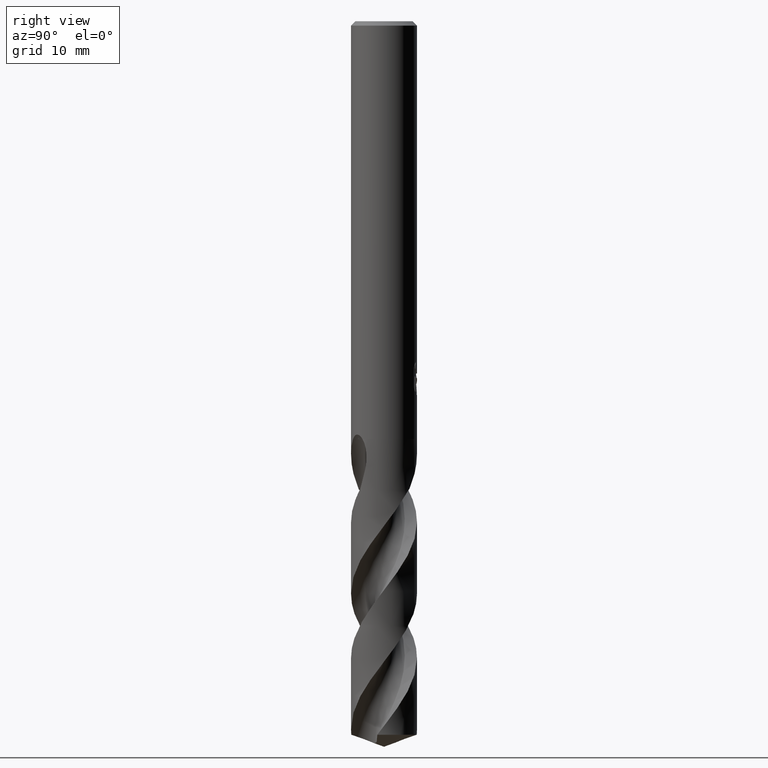
[diagram: clean part render]
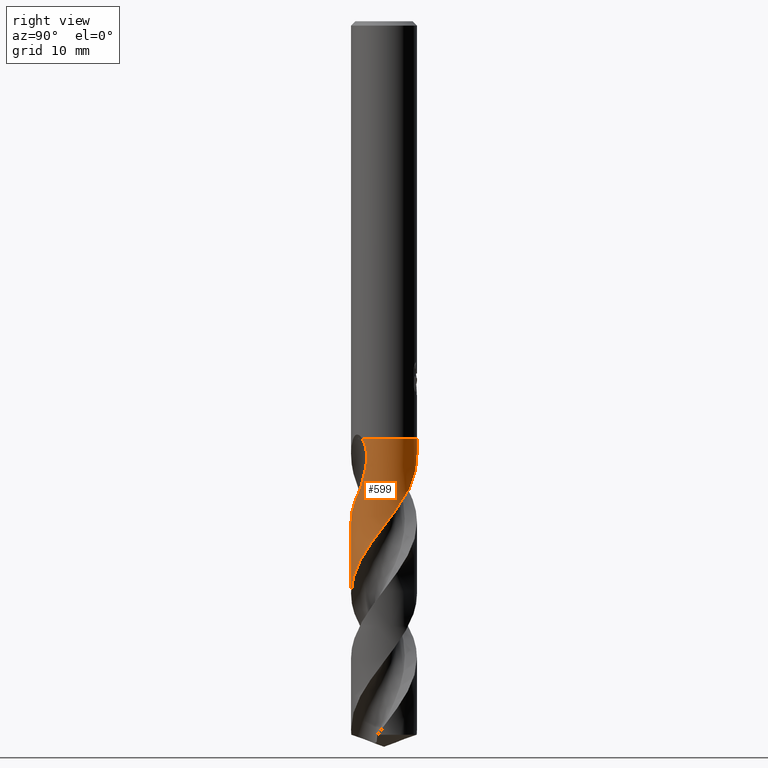
[diagram: same view with one face highlighted and labeled with its STEP entity id]
A machine part, right view. The second image highlights one B-rep face of the part: STEP entity #599.
In plain terms, the highlighted conical surface has half-angle 0 deg.
Its self-contained STEP definition (entity closure, byte-faithful):
#259=VERTEX_POINT('',#718);
#297=EDGE_CURVE('',#539,#515,#759,.T.);
#317=VERTEX_POINT('',#781);
#353=EDGE_CURVE('',#665,#539,#821,.T.);
#367=EDGE_CURVE('',#259,#481,#835,.T.);
#413=EDGE_CURVE('',#529,#515,#886,.T.);
#423=EDGE_CURVE('',#317,#665,#897,.T.);
#447=VERTEX_POINT('',#922);
#481=VERTEX_POINT('',#961);
#515=VERTEX_POINT('',#997);
#525=EDGE_CURVE('',#259,#317,#1008,.T.);
#529=VERTEX_POINT('',#1013);
#539=VERTEX_POINT('',#1023);
#585=EDGE_CURVE('',#447,#481,#1073,.T.);
#599=ADVANCED_FACE('',(#1087),#1088,.T.);
#665=VERTEX_POINT('',#1162);
#681=EDGE_CURVE('',#529,#447,#1179,.T.);
#718=CARTESIAN_POINT('',(-3.66824618936939E-016,2.9999,-38.0));
#759=B_SPLINE_CURVE_WITH_KNOTS('',3,(#1363,#1364,#1365,#1366,#1367,#1368,#1369,#1370,#1371,#1372,#1373,#1374,#1375,#1376,#1377,#1378,#1379,#1380,#1381,#1382,#1383,#1384,#1385,#1386,#1387,#1388,#1389,#1390,#1391,#1392,#1393,#1394,#1395,#1396,#1397,#1398,#1399,#1400,#1401,#1402,#1403,#1404,#1405,#1406,#1407,#1408,#1409,#1410,#1411,#1412,#1413,#1414,#1415,#1416,#1417,#1418,#1419,#1420,#1421,#1422,#1423,#1424,#1425,#1426,#1427,#1428,#1429,#1430,#1431,#1432,#1433,#1434,#1435,#1436,#1437,#1438,#1439,#1440,#1441,#1442,#1443,#1444,#1445,#1446,#1447,#1448),.UNSPECIFIED.,.F.,.F.,(4,2,2,2,2,2,2,2,2,2,2,2,2,2,2,2,2,2,2,2,2,2,2,2,2,2,2,2,2,2,2,2,2,2,2,2,2,2,2,2,2,2,4),(0.0,0.0993043886910324,0.133810008353453,0.198759733156369,0.51618650020772,0.627581816484018,0.698954258966255,0.766036611279358,0.856023579051509,0.957565005734158,1.34121247506467,1.63577952648651,1.92231758631105,3.79579283339037,5.15351212799853,5.91578553599356,6.68924621351449,7.07780265431932,7.44370029096749,8.79859775236509,9.56043310014897,10.334303063432,10.722547094251,11.0750210956175,12.4456948866715,13.2055523892608,13.9797062395637,14.7546070655554,16.2481405469769,16.4087688709198,17.6175894923522,18.3915079182685,19.9131645175091,19.9630808402596,21.5787151557321,21.9328013399243,23.2883165362066,23.8248217374293,24.7699014758561,25.1262025587651,25.7472539043362,26.6829038929545,27.6207703508134),.UNSPECIFIED.);
#781=CARTESIAN_POINT('',(2.27206572632338,-1.95885613184496,-38.0));
#821=B_SPLINE_CURVE_WITH_KNOTS('',3,(#2150,#2151,#2152,#2153),.UNSPECIFIED.,.F.,.F.,(4,4),(0.0,1.72401971933018),.UNSPECIFIED.);
#835=LINE('',#2196,#2197);
#886=LINE('',#2496,#2497);
#897=B_SPLINE_CURVE_WITH_KNOTS('',3,(#2510,#2511,#2512,#2513,#2514,#2515,#2516,#2517),.UNSPECIFIED.,.F.,.F.,(4,2,2,4),(0.0,0.560998860743628,1.34596583268392,2.09615648026801),.UNSPECIFIED.);
#922=CARTESIAN_POINT('',(1.911620345301,2.31197078660974,-42.541));
#961=CARTESIAN_POINT('',(-8.89250010736963E-013,2.99990502479152,-39.3520753885589));
#997=CARTESIAN_POINT('',(-1.00300927533167E-014,-2.99992813344869,-45.5701734954129));
#1008=CIRCLE('',#3261,2.9999);
#1013=CARTESIAN_POINT('',(1.29858009831303E-013,-2.9999523347009,-52.0822680513244));
#1023=CARTESIAN_POINT('',(2.08517324191318,-2.15674611716699,-42.541));
#1073=B_SPLINE_CURVE_WITH_KNOTS('',3,(#3872,#3873,#3874,#3875,#3876,#3877,#3878,#3879,#3880,#3881,#3882,#3883,#3884,#3885),.UNSPECIFIED.,.F.,.F.,(4,2,2,2,2,2,4),(0.0,1.4698407747301,2.27240001141748,2.99930618988776,3.84377884992052,4.85817165914481,5.38253834136474),.UNSPECIFIED.);
#1087=FACE_OUTER_BOUND('',#3926,.T.);
#1088=CONICAL_SURFACE('',#3927,2.99995,3.71635454659173E-006);
#1162=CARTESIAN_POINT('',(2.44084107710284,-1.74406406794348,-40.8983959763193));
#1179=B_SPLINE_CURVE_WITH_KNOTS('',3,(#4855,#4856,#4857,#4858,#4859,#4860,#4861,#4862,#4863,#4864,#4865,#4866,#4867,#4868,#4869,#4870,#4871,#4872,#4873,#4874,#4875,#4876,#4877,#4878,#4879,#4880,#4881,#4882,#4883,#4884,#4885,#4886,#4887,#4888,#4889,#4890,#4891,#4892,#4893,#4894,#4895,#4896,#4897,#4898,#4899,#4900,#4901,#4902,#4903,#4904,#4905,#4906,#4907,#4908,#4909,#4910,#4911,#4912,#4913,#4914,#4915,#4916,#4917,#4918,#4919,#4920,#4921,#4922,#4923,#4924,#4925,#4926,#4927,#4928,#4929,#4930,#4931,#4932),.UNSPECIFIED.,.F.,.F.,(4,2,2,2,2,2,2,2,2,2,2,2,2,2,2,2,2,2,2,2,2,2,2,2,2,2,2,2,2,2,2,2,2,2,2,2,2,2,4),(0.0,1.23059925118849,2.02254366443159,2.67546675293047,4.09672308397308,4.23628683515398,5.82683230148594,6.40497399606678,7.7780970524227,7.91502252090712,9.56634925585409,9.84450840921103,11.4877242502874,11.7588412039597,12.7161327518608,14.2986042545293,14.69491313978,15.0909294602242,15.3754807391882,16.3953776993288,17.9810262349513,18.7752393410076,19.0877081876738,20.7383235339199,21.0281845886458,21.9273418856885,22.3315568392924,22.8934305032543,23.9805915588334,25.9628607800466,26.9171063319389,27.1507275410228,27.3314841823381,27.332107871347,27.3564421567242,27.3779982106044,27.4053041831309,27.4618206861785,27.5436484122927),.UNSPECIFIED.);
#1363=CARTESIAN_POINT('',(2.08517324191318,-2.15674611716699,-42.541));
#1364=CARTESIAN_POINT('',(2.0713662249792,-2.17009507957393,-42.5679606812222));
#1365=CARTESIAN_POINT('',(2.05740259257669,-2.18333927545195,-42.5949154120445));
#1366=CARTESIAN_POINT('',(2.03833917110658,-2.20107286913864,-42.6311909795339));
#1367=CARTESIAN_POINT('',(2.0334027773192,-2.20563413543843,-42.6405382927532));
#1368=CARTESIAN_POINT('',(2.01910848606936,-2.21875315122864,-42.6674653878255));
#1369=CARTESIAN_POINT('',(2.00970103222941,-2.22727830356221,-42.6850155380857));
#1370=CARTESIAN_POINT('',(1.95378549031509,-2.27730282985589,-42.7882461816633));
#1371=CARTESIAN_POINT('',(1.90635411299343,-2.31720578089442,-42.8713793673941));
#1372=CARTESIAN_POINT('',(1.83822770175415,-2.37085163373592,-42.9848535197248));
#1373=CARTESIAN_POINT('',(1.82032176097817,-2.38462923810703,-43.0141781256821));
#1374=CARTESIAN_POINT('',(1.79052361574516,-2.40702096676789,-43.0622690560887));
#1375=CARTESIAN_POINT('',(1.77880463197156,-2.41569470946824,-43.0810074905648));
#1376=CARTESIAN_POINT('',(1.75589609286634,-2.43239217011034,-43.1173442910875));
#1377=CARTESIAN_POINT('',(1.74473015818419,-2.44041404126141,-43.1349227227943));
#1378=CARTESIAN_POINT('',(1.71842340575681,-2.45903994304626,-43.1760792102156));
#1379=CARTESIAN_POINT('',(1.70324884989814,-2.46957499819532,-43.1996222750514));
#1380=CARTESIAN_POINT('',(1.67074007465769,-2.49170209493518,-43.2497692210443));
#1381=CARTESIAN_POINT('',(1.65322053112758,-2.50336342599459,-43.2766101030572));
#1382=CARTESIAN_POINT('',(1.56835025285938,-2.55855548193974,-43.4065077601252));
#1383=CARTESIAN_POINT('',(1.49994250674856,-2.59921712974915,-43.5104160075398));
#1384=CARTESIAN_POINT('',(1.37725301056092,-2.66577876394736,-43.6937516394829));
#1385=CARTESIAN_POINT('',(1.32314093701042,-2.69304524636637,-43.7736262459129));
#1386=CARTESIAN_POINT('',(1.21489751535045,-2.74354242807715,-43.9309339989632));
#1387=CARTESIAN_POINT('',(1.16079138310293,-2.76687192371843,-44.0083125396245));
#1388=CARTESIAN_POINT('',(0.747244991401334,-2.93088111564392,-44.5918968157289));
#1389=CARTESIAN_POINT('',(0.36440090242091,-3.00262113232733,-45.0921282721115));
#1390=CARTESIAN_POINT('',(-0.301246045592043,-2.99784321940957,-45.9653638677342));
#1391=CARTESIAN_POINT('',(-0.579475805257757,-2.95672109193257,-46.3309179806883));
#1392=CARTESIAN_POINT('',(-0.998861349085674,-2.8331235421568,-46.9035740152163));
#1393=CARTESIAN_POINT('',(-1.1458450286393,-2.77692318219712,-47.109162096302));
#1394=CARTESIAN_POINT('',(-1.43159340315496,-2.64112512332054,-47.5242854707705));
#1395=CARTESIAN_POINT('',(-1.56989103413118,-2.56134543770679,-47.7330760118645));
#1396=CARTESIAN_POINT('',(-1.76722632857721,-2.42547998148321,-48.0470373877574));
#1397=CARTESIAN_POINT('',(-1.83137338443878,-2.37741859600482,-48.1519463064316));
#1398=CARTESIAN_POINT('',(-1.95205620651975,-2.27921075884667,-48.3557577833214));
#1399=CARTESIAN_POINT('',(-2.00874309449065,-2.22941052214108,-48.4545294236254));
#1400=CARTESIAN_POINT('',(-2.26617702654219,-1.98546309507629,-48.9196403289537));
#1401=CARTESIAN_POINT('',(-2.44116898284105,-1.76591524806349,-49.2845484223664));
#1402=CARTESIAN_POINT('',(-2.66316630137009,-1.38992998298159,-49.8564913008071));
#1403=CARTESIAN_POINT('',(-2.73226589423215,-1.24861321739065,-50.062060342371));
#1404=CARTESIAN_POINT('',(-2.84857426567333,-0.954322013961998,-50.4772804297843));
#1405=CARTESIAN_POINT('',(-2.89529285141889,-0.801520308820772,-50.6862116525923));
#1406=CARTESIAN_POINT('',(-2.94687706955706,-0.56746518608555,-51.0002656613687));
#1407=CARTESIAN_POINT('',(-2.9609748586183,-0.488604315984622,-51.1051120430889));
#1408=CARTESIAN_POINT('',(-2.98182078981674,-0.337235946886177,-51.3052598493068));
#1409=CARTESIAN_POINT('',(-2.98911454478957,-0.264901125849395,-51.4004416520575));
#1410=CARTESIAN_POINT('',(-3.01189676485371,0.0895850372469975,-51.866303604052));
#1411=CARTESIAN_POINT('',(-2.9900946626874,0.372866302933664,-52.2354648784149));
#1412=CARTESIAN_POINT('',(-2.89500312234429,0.80203884410511,-52.8112624324439));
#1413=CARTESIAN_POINT('',(-2.84916041157102,0.952126982551864,-53.016383672271));
#1414=CARTESIAN_POINT('',(-2.73345842590167,1.24635737139552,-53.4312328328383));
#1415=CARTESIAN_POINT('',(-2.6632888240793,1.39001627461874,-53.6402681290601));
#1416=CARTESIAN_POINT('',(-2.5005861083967,1.6650466346423,-54.0589700717103));
#1417=CARTESIAN_POINT('',(-2.40836272646709,1.79584871809374,-54.2678025574753));
#1418=CARTESIAN_POINT('',(-2.1092689833944,2.15535757965936,-54.8812438632985));
#1419=CARTESIAN_POINT('',(-1.87696512336435,2.36045690650833,-55.2828604825235));
#1420=CARTESIAN_POINT('',(-1.5895065574644,2.54447691017644,-55.72998297964));
#1421=CARTESIAN_POINT('',(-1.56130637645593,2.56187753314104,-55.7733909947885));
#1422=CARTESIAN_POINT('',(-1.31848726032063,2.70620915628686,-56.1436932877369));
#1423=CARTESIAN_POINT('',(-1.08901589590438,2.806437235125,-56.4700055634251));
#1424=CARTESIAN_POINT('',(-0.6965929875031,2.92234340134945,-57.0061281831914));
#1425=CARTESIAN_POINT('',(-0.540115887711946,2.95526270647084,-57.2147885549827));
#1426=CARTESIAN_POINT('',(-0.0705443361743187,3.01551744641625,-57.8358189349753));
#1427=CARTESIAN_POINT('',(0.245224293298711,3.00638644178954,-58.2449586694811));
#1428=CARTESIAN_POINT('',(0.564025302079051,2.94649665012841,-58.6699223038638));
#1429=CARTESIAN_POINT('',(0.574139785496782,2.94454255402132,-58.6834186027293));
#1430=CARTESIAN_POINT('',(0.911323568585652,2.87759589587173,-59.1338930868946));
#1431=CARTESIAN_POINT('',(1.22546117370618,2.75851996494012,-59.5689632013899));
#1432=CARTESIAN_POINT('',(1.5766481895736,2.55331541417768,-60.1017585949495));
#1433=CARTESIAN_POINT('',(1.63838246667551,2.51414738256092,-60.1974754596238));
#1434=CARTESIAN_POINT('',(1.92918052102943,2.31439295696574,-60.660161051938));
#1435=CARTESIAN_POINT('',(2.1365955781335,2.12444400901148,-61.0256694359284));
#1436=CARTESIAN_POINT('',(2.38519926969777,1.82291778773025,-61.5375353677295));
#1437=CARTESIAN_POINT('',(2.4508655485857,1.73362181310532,-61.682496932154));
#1438=CARTESIAN_POINT('',(2.61810760598285,1.47766308629219,-62.0835878318809));
#1439=CARTESIAN_POINT('',(2.70864901118043,1.30431911702288,-62.3390888180747));
#1440=CARTESIAN_POINT('',(2.8092771020276,1.05514260425668,-62.6913049220598));
#1441=CARTESIAN_POINT('',(2.83431248779093,0.985921705383272,-62.7876804986658));
#1442=CARTESIAN_POINT('',(2.89594166709451,0.793685105217334,-63.0521550904615));
#1443=CARTESIAN_POINT('',(2.92721299160193,0.669191232050335,-63.2200590201583));
#1444=CARTESIAN_POINT('',(2.98538256362525,0.353206981424194,-63.641502210555));
#1445=CARTESIAN_POINT('',(3.00194437436934,0.160250041718632,-63.8942188077406));
#1446=CARTESIAN_POINT('',(2.9976806285827,-0.226824887252673,-64.4011223780692));
#1447=CARTESIAN_POINT('',(2.97678349229506,-0.419707641158025,-64.6539769317167));
#1448=CARTESIAN_POINT('',(2.93752141660916,-0.609071364424951,-64.9080892972014));
#2150=CARTESIAN_POINT('',(2.44084107715546,-1.74406406786984,-40.8983959763482));
#2151=CARTESIAN_POINT('',(2.3441297116611,-1.87941643848968,-41.4484650447999));
#2152=CARTESIAN_POINT('',(2.22756766211121,-2.0190743514634,-42.0018070406012));
#2153=CARTESIAN_POINT('',(2.08517324191318,-2.15674611716699,-42.541));
#2196=CARTESIAN_POINT('',(-3.66830741968708E-016,2.99995,-51.4540446486007));
#2197=VECTOR('',#5075,1.0);
#2496=CARTESIAN_POINT('',(3.6792082426118E-016,-2.99995,-51.4540446486007));
#2497=VECTOR('',#5139,1.0);
#2510=CARTESIAN_POINT('',(2.27206572632338,-1.95885613184496,-38.0));
#2511=CARTESIAN_POINT('',(2.34618068798084,-1.87289146879062,-38.1486132804877));
#2512=CARTESIAN_POINT('',(2.40464113703118,-1.79523227409004,-38.3333607605238));
#2513=CARTESIAN_POINT('',(2.50976637266457,-1.64673923056007,-38.8423155199794));
#2514=CARTESIAN_POINT('',(2.5447516044029,-1.58861230012344,-39.2021858727661));
#2515=CARTESIAN_POINT('',(2.54970305318513,-1.58065798526515,-39.9891050124465));
#2516=CARTESIAN_POINT('',(2.52454420465138,-1.62691737399269,-40.4223243050218));
#2517=CARTESIAN_POINT('',(2.44084107710284,-1.74406406794348,-40.8983959763193));
#3261=AXIS2_PLACEMENT_3D('',#5280,#5281,#5282);
#3872=CARTESIAN_POINT('',(1.911620345301,2.31197078660975,-42.541));
#3873=CARTESIAN_POINT('',(1.71373461052247,2.47558779541369,-42.1237246716735));
#3874=CARTESIAN_POINT('',(1.48620824768746,2.62103400592475,-41.7346895015382));
#3875=CARTESIAN_POINT('',(1.08946823456592,2.7993080318112,-41.0847853463982));
#3876=CARTESIAN_POINT('',(0.94670265449896,2.85059060657399,-40.8561288657029));
#3877=CARTESIAN_POINT('',(0.670327484762837,2.92723336299864,-40.4135137611212));
#3878=CARTESIAN_POINT('',(0.537951726910625,2.95431092320991,-40.2016176750608));
#3879=CARTESIAN_POINT('',(0.25141620031446,2.99338967792196,-39.7449315794095));
#3880=CARTESIAN_POINT('',(0.0948625817678948,3.00256410516828,-39.4965665776857));
#3881=CARTESIAN_POINT('',(-0.252801776441659,2.99525011880761,-38.9652361451713));
#3882=CARTESIAN_POINT('',(-0.458930734569508,2.97263083676271,-38.6629061130183));
#3883=CARTESIAN_POINT('',(-0.781940570164007,2.89840138404733,-38.2577991846801));
#3884=CARTESIAN_POINT('',(-0.9006554350536,2.86451801205425,-38.1207389968089));
#3885=CARTESIAN_POINT('',(-1.02407252913775,2.81969421481575,-38.0));
#3926=EDGE_LOOP('',(#5340,#5341,#5342,#5343,#5344,#5345,#5346,#5347));
#3927=AXIS2_PLACEMENT_3D('',#5348,#5349,#5350);
#4855=CARTESIAN_POINT('',(0.355715429172608,2.97883643952611,-64.9080892972014));
#4856=CARTESIAN_POINT('',(0.108423872193947,3.00836534792681,-64.5821464116512));
#4857=CARTESIAN_POINT('',(-0.14126292742069,3.00699487664025,-64.2534313312999));
#4858=CARTESIAN_POINT('',(-0.547022784109965,2.95405006143379,-63.7175674678408));
#4859=CARTESIAN_POINT('',(-0.703916104603996,2.92063233410042,-63.5087790854431));
#4860=CARTESIAN_POINT('',(-0.983777162831405,2.8371744636381,-63.1258038129837));
#4861=CARTESIAN_POINT('',(-1.10750346682162,2.79120229814625,-62.9520627314224));
#4862=CARTESIAN_POINT('',(-1.49003201116616,2.61959523917925,-62.4022537567128));
#4863=CARTESIAN_POINT('',(-1.73356156526769,2.46510658651888,-62.0309006535153));
#4864=CARTESIAN_POINT('',(-1.97251142065753,2.26051244051107,-61.6166980609076));
#4865=CARTESIAN_POINT('',(-1.99359188261644,2.24194319602669,-61.5796521623226));
#4866=CARTESIAN_POINT('',(-2.25212692993936,2.00766523526649,-61.1202779276782));
#4867=CARTESIAN_POINT('',(-2.45372823013072,1.7555969038838,-60.7060501227171));
#4868=CARTESIAN_POINT('',(-2.66904958562007,1.37465483831421,-60.131142160839));
#4869=CARTESIAN_POINT('',(-2.72054892765585,1.26971487818829,-59.9771589417432));
#4870=CARTESIAN_POINT('',(-2.8733943045389,0.905874186704099,-59.4595376310633));
#4871=CARTESIAN_POINT('',(-2.94475741547369,0.636407230716807,-59.1002867606203));
#4872=CARTESIAN_POINT('',(-2.98145611461726,0.33398214789438,-58.6993505678631));
#4873=CARTESIAN_POINT('',(-2.98439978299617,0.306560521861027,-58.6629886142862));
#4874=CARTESIAN_POINT('',(-3.01790883658861,-0.0520769974475426,-58.188650092877));
#4875=CARTESIAN_POINT('',(-2.9935807850138,-0.386006275418927,-57.7595478519967));
#4876=CARTESIAN_POINT('',(-2.90167181877003,-0.7637214625324,-57.2485079163081));
#4877=CARTESIAN_POINT('',(-2.88692285382064,-0.81770241854698,-57.1747113627708));
#4878=CARTESIAN_POINT('',(-2.77462888700925,-1.1876848669478,-56.666026182787));
#4879=CARTESIAN_POINT('',(-2.62703780792911,-1.48580498713024,-56.239728305507));
#4880=CARTESIAN_POINT('',(-2.40203744711239,-1.79804963439508,-55.7332363672762));
#4881=CARTESIAN_POINT('',(-2.36898216096019,-1.84138636647667,-55.6613840187392));
#4882=CARTESIAN_POINT('',(-2.2134899211291,-2.03408005192827,-55.3358589079439));
#4883=CARTESIAN_POINT('',(-2.07794100424594,-2.17242022805645,-55.0840334642739));
#4884=CARTESIAN_POINT('',(-1.68474385633832,-2.50275639506825,-54.4124773306945));
#4885=CARTESIAN_POINT('',(-1.40847840779455,-2.66802012056147,-53.9930328364081));
#4886=CARTESIAN_POINT('',(-1.03682817966024,-2.81623042134794,-53.4698608760575));
#4887=CARTESIAN_POINT('',(-0.961251210578935,-2.84291301538508,-53.365195142781));
#4888=CARTESIAN_POINT('',(-0.808236207114983,-2.89013812736791,-53.1556590390761));
#4889=CARTESIAN_POINT('',(-0.730944485985276,-2.91064047460743,-53.0509858237727));
#4890=CARTESIAN_POINT('',(-0.597050152329564,-2.94050210353061,-52.8707253956608));
#4891=CARTESIAN_POINT('',(-0.540816258263153,-2.95135917311015,-52.7952164478755));
#4892=CARTESIAN_POINT('',(-0.281981202353597,-2.99370334687491,-52.450057107698));
#4893=CARTESIAN_POINT('',(-0.0764041741893483,-3.00603514307549,-52.1823957078234));
#4894=CARTESIAN_POINT('',(0.448960805724959,-2.98337827034909,-51.4947785251873));
#4895=CARTESIAN_POINT('',(0.764335279179242,-2.91854282624644,-51.0752713204472));
#4896=CARTESIAN_POINT('',(1.21343840984988,-2.74826069131348,-50.4472171681916));
#4897=CARTESIAN_POINT('',(1.35830337547638,-2.67959448180724,-50.2385056676068));
#4898=CARTESIAN_POINT('',(1.55129812661377,-2.56848088818788,-49.94596610728));
#4899=CARTESIAN_POINT('',(1.60469804454467,-2.53545673745866,-49.8631918568593));
#4900=CARTESIAN_POINT('',(1.93310734454785,-2.31785994077389,-49.344783991864));
#4901=CARTESIAN_POINT('',(2.17686365028644,-2.09057094449036,-48.9176803776869));
#4902=CARTESIAN_POINT('',(2.41400755376753,-1.78201536618773,-48.4056760544633));
#4903=CARTESIAN_POINT('',(2.44807042219407,-1.73492794313762,-48.3290593553937));
#4904=CARTESIAN_POINT('',(2.58242582262247,-1.5373203357321,-48.0149387172119));
#4905=CARTESIAN_POINT('',(2.67046734698487,-1.37879733278526,-47.7789345950098));
#4906=CARTESIAN_POINT('',(2.77671298833341,-1.13847097429135,-47.4353383336979));
#4907=CARTESIAN_POINT('',(2.80658466002186,-1.06268946773971,-47.3288677116154));
#4908=CARTESIAN_POINT('',(2.87048071801647,-0.879051052044188,-47.0739364077395));
#4909=CARTESIAN_POINT('',(2.9015116585558,-0.770414524594633,-46.9250754881505));
#4910=CARTESIAN_POINT('',(2.97435156474368,-0.447664382337742,-46.4901160911542));
#4911=CARTESIAN_POINT('',(2.99909143826466,-0.23000332275836,-46.2060163083951));
#4912=CARTESIAN_POINT('',(3.0013981760678,0.387705065149538,-45.3982306889312));
#4913=CARTESIAN_POINT('',(2.92336149064987,0.783187841239573,-44.8740622106938));
#4914=CARTESIAN_POINT('',(2.69583282506547,1.33006382876436,-44.1038262157045));
#4915=CARTESIAN_POINT('',(2.60718050882251,1.49558842303184,-43.8682873785209));
#4916=CARTESIAN_POINT('',(2.4796655483617,1.68904087442066,-43.5517912319621));
#4917=CARTESIAN_POINT('',(2.45406487003669,1.7259933584331,-43.4892372093897));
#4918=CARTESIAN_POINT('',(2.40788643900192,1.78963101243892,-43.377240969005));
#4919=CARTESIAN_POINT('',(2.38753213382402,1.81667996127583,-43.3281534388184));
#4920=CARTESIAN_POINT('',(2.36692845706543,1.84314063488602,-43.2785183839988));
#4921=CARTESIAN_POINT('',(2.36627009621356,1.84398584589191,-43.2769333219162));
#4922=CARTESIAN_POINT('',(2.35288675920936,1.86115321773287,-43.2447693668841));
#4923=CARTESIAN_POINT('',(2.3393808104854,1.8781123243806,-43.2137771389712));
#4924=CARTESIAN_POINT('',(2.31294737430535,1.91054328842237,-43.1559163518822));
#4925=CARTESIAN_POINT('',(2.30015264545649,1.92593569582255,-43.1290310868797));
#4926=CARTESIAN_POINT('',(2.27022723088149,1.96118562979294,-43.0686868352912));
#4927=CARTESIAN_POINT('',(2.25288279129273,1.98110082667267,-43.0354528065236));
#4928=CARTESIAN_POINT('',(2.1975893208719,2.04284959041853,-42.9347726385718));
#4929=CARTESIAN_POINT('',(2.15764844681876,2.08511781051689,-42.8691279792306));
#4930=CARTESIAN_POINT('',(2.05269160805423,2.18943444393418,-42.712894306644));
#4931=CARTESIAN_POINT('',(1.98511261037829,2.25120515308698,-42.6252793260781));
#4932=CARTESIAN_POINT('',(1.911620345301,2.31197078660974,-42.541));
#5075=DIRECTION('',(-4.55107139080244E-022,3.71635454658318E-006,-0.999999999993094));
#5139=DIRECTION('',(-4.55107139080244E-022,3.71635454658318E-006,0.999999999993094));
#5280=CARTESIAN_POINT('',(0.0,0.0,-38.0));
#5281=DIRECTION('',(0.0,0.0,-1.0));
#5282=DIRECTION('',(0.0,1.0,0.0));
#5340=ORIENTED_EDGE('',*,*,#367,.F.);
#5341=ORIENTED_EDGE('',*,*,#525,.T.);
#5342=ORIENTED_EDGE('',*,*,#423,.T.);
#5343=ORIENTED_EDGE('',*,*,#353,.T.);
#5344=ORIENTED_EDGE('',*,*,#297,.T.);
#5345=ORIENTED_EDGE('',*,*,#413,.F.);
#5346=ORIENTED_EDGE('',*,*,#681,.T.);
#5347=ORIENTED_EDGE('',*,*,#585,.T.);
#5348=CARTESIAN_POINT('',(0.0,0.0,-51.4540446486007));
#5349=DIRECTION('',(0.0,-0.0,-1.0));
#5350=DIRECTION('',(0.0,1.0,0.0));